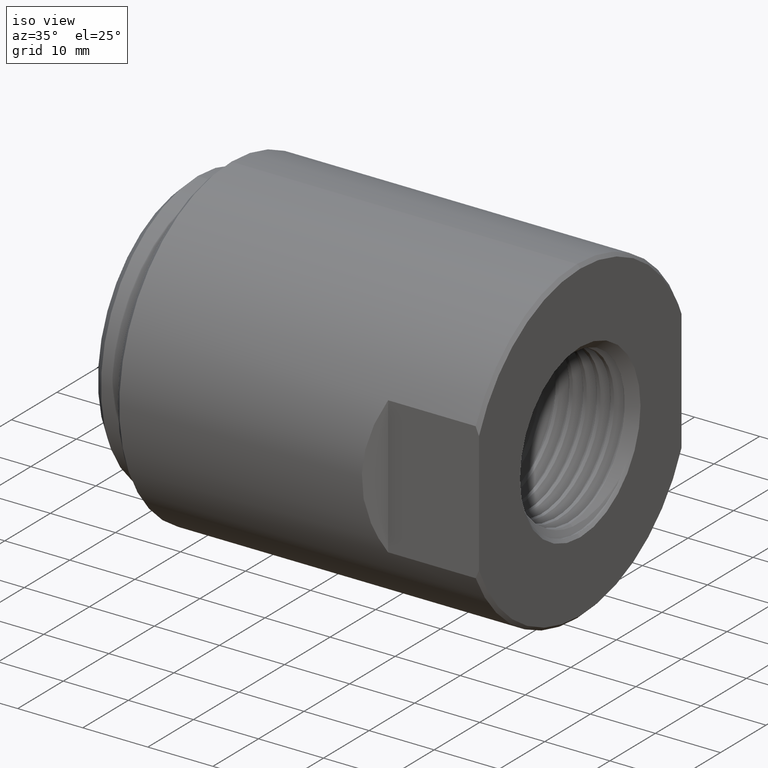
[diagram: clean part render]
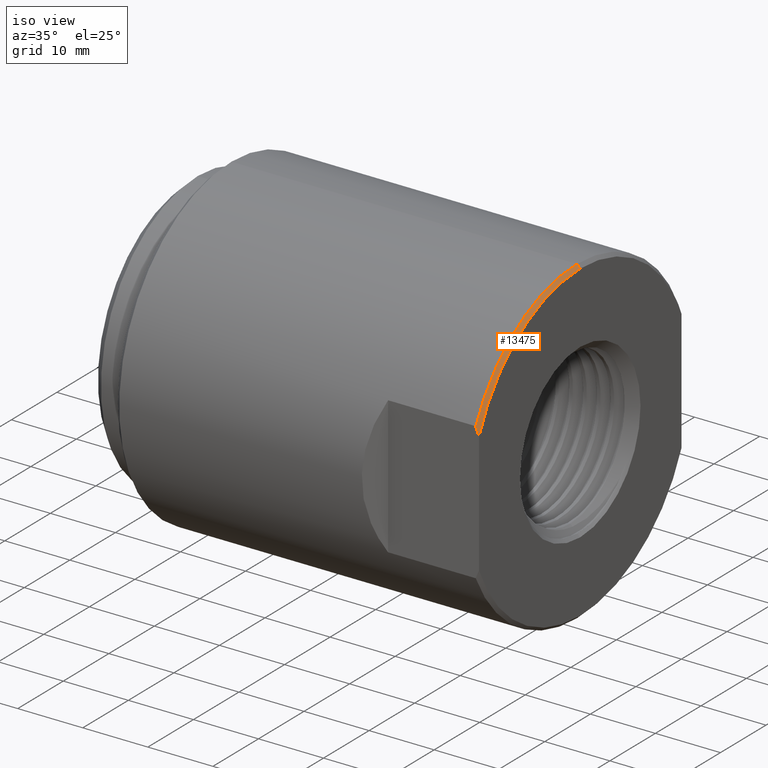
[diagram: same view with one face highlighted and labeled with its STEP entity id]
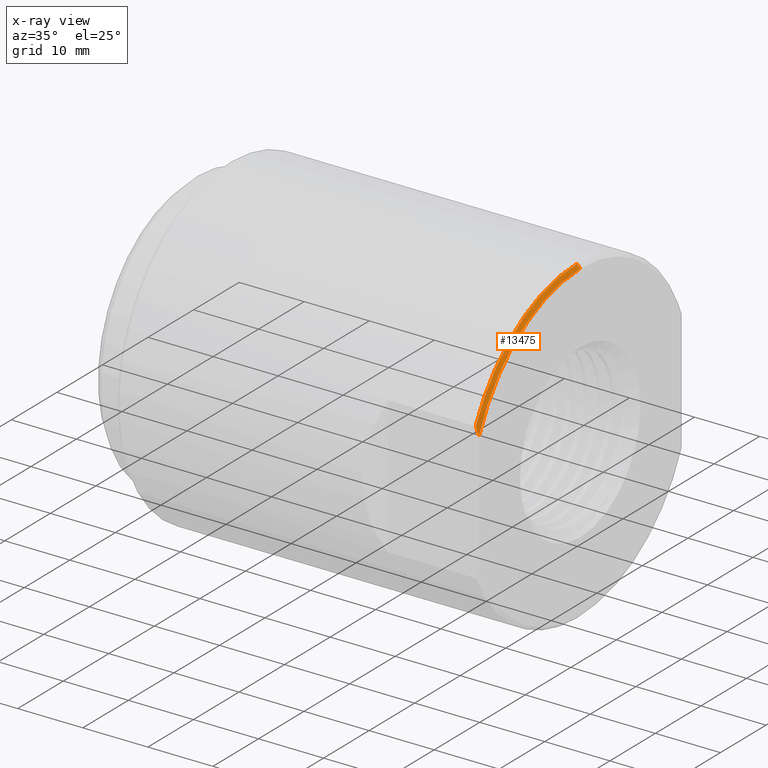
[diagram: x-ray of the same camera — body ghosted, the highlighted face saturated]
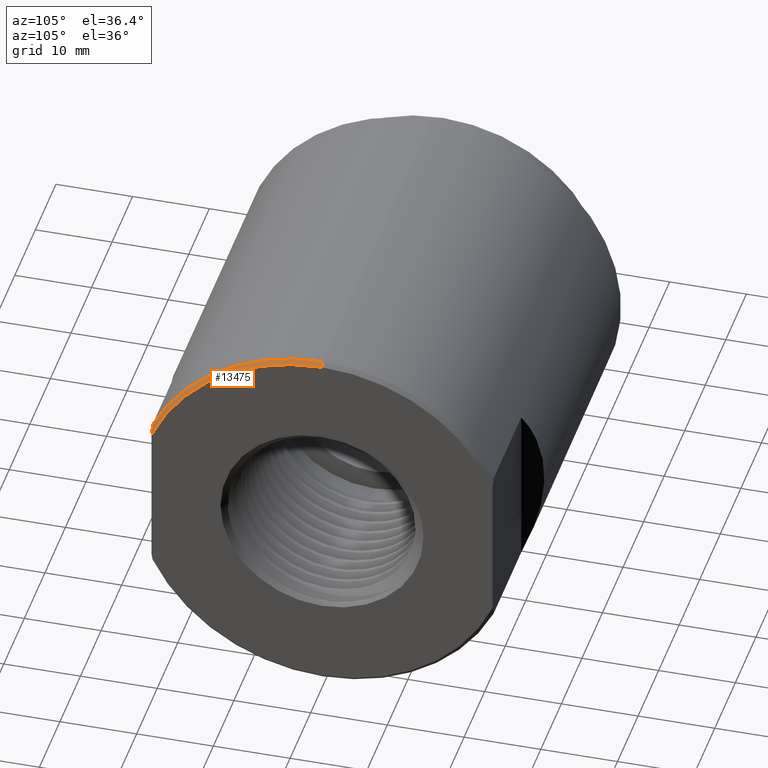
[diagram: same view with one face highlighted and labeled with its STEP entity id]
A machine part, iso view. The second image highlights one B-rep face of the part: STEP entity #13475.
The next image is the same camera in x-ray: the body ghosted, the highlighted face saturated — about 0% of this face is hidden behind the body in this view.
A second angle (auxiliary view) of the same face is appended — the face is thin or edge-on in the first view.
In plain terms, the highlighted conical surface has half-angle 45 deg.
Its self-contained STEP definition (entity closure, byte-faithful):
#207 = DIRECTION ( 'NONE',  ( -0.7071067811865523467, 0.0000000000000000000, 0.7071067811865426878 ) ) ;
#580 = CIRCLE ( 'NONE', #8318, 0.9487500000000000933 ) ;
#925 = VERTEX_POINT ( 'NONE', #7891 ) ;
#1382 = LINE ( 'NONE', #9700, #12094 ) ;
#1487 = VERTEX_POINT ( 'NONE', #6926 ) ;
#1783 = DIRECTION ( 'NONE',  ( 0.0000000000000000000, 0.0000000000000000000, 1.000000000000000000 ) ) ;
#1928 = CARTESIAN_POINT ( 'NONE',  ( 1.750000000000000222, -0.8750000000000003331, 0.3667445466533885701 ) ) ;
#1946 = CONICAL_SURFACE ( 'NONE', #12581, 0.9687499999999998890, 0.7853981633974415066 ) ;
#2597 = CARTESIAN_POINT ( 'NONE',  ( 1.750000000000000222, 0.0000000000000000000, 0.0000000000000000000 ) ) ;
#2605 = CARTESIAN_POINT ( 'NONE',  ( 1.736938786640938703, -0.8750000000000003331, 0.3995861238438196406 ) ) ;
#2698 = EDGE_CURVE ( 'NONE', #925, #13294, #12913, .T. ) ;
#2743 = CARTESIAN_POINT ( 'NONE',  ( 1.743617801218336982, -0.8750000000000003331, 0.3832549791856700860 ) ) ;
#3423 = ORIENTED_EDGE ( 'NONE', *, *, #7335, .T. ) ;
#3823 = FACE_OUTER_BOUND ( 'NONE', #6214, .T. ) ;
#4069 = ORIENTED_EDGE ( 'NONE', *, *, #6520, .T. ) ;
#4728 = DIRECTION ( 'NONE',  ( 0.0000000000000000000, 0.0000000000000000000, 1.000000000000000000 ) ) ;
#4816 = CARTESIAN_POINT ( 'NONE',  ( 1.730000000000000204, 0.0000000000000000000, 0.0000000000000000000 ) ) ;
#4859 = DIRECTION ( 'NONE',  ( -1.000000000000000000, -0.0000000000000000000, -0.0000000000000000000 ) ) ;
#5928 = DIRECTION ( 'NONE',  ( -1.000000000000000000, -0.0000000000000000000, -0.0000000000000000000 ) ) ;
#6214 = EDGE_LOOP ( 'NONE', ( #3423, #4069, #7302, #13019 ) ) ;
#6260 = AXIS2_PLACEMENT_3D ( 'NONE', #4816, #5928, #1783 ) ;
#6520 = EDGE_CURVE ( 'NONE', #1487, #13294, #1382, .T. ) ;
#6825 = DIRECTION ( 'NONE',  ( -1.000000000000000000, -0.0000000000000000000, -0.0000000000000000000 ) ) ;
#6833 = CARTESIAN_POINT ( 'NONE',  ( 1.730000000000000204, -0.8750000000000003331, 0.4157542092390635324 ) ) ;
#6926 = CARTESIAN_POINT ( 'NONE',  ( 1.750000000000000222, 0.0000000000000000000, 0.9487500000000000933 ) ) ;
#7302 = ORIENTED_EDGE ( 'NONE', *, *, #2698, .F. ) ;
#7335 = EDGE_CURVE ( 'NONE', #13174, #1487, #580, .T. ) ;
#7473 = B_SPLINE_CURVE_WITH_KNOTS ( 'NONE', 3,
 ( #8901, #2743, #2605, #6833 ),
 .UNSPECIFIED., .F., .F.,
 ( 4, 4 ),
 ( 0.06939612920926654938, 0.07073585939326498817 ),
 .UNSPECIFIED. ) ;
#7891 = CARTESIAN_POINT ( 'NONE',  ( 1.730000000000000204, -0.8750000000000003331, 0.4157542092390635324 ) ) ;
#8318 = AXIS2_PLACEMENT_3D ( 'NONE', #2597, #6825, #4728 ) ;
#8568 = CARTESIAN_POINT ( 'NONE',  ( 1.730000000000000204, 0.0000000000000000000, 0.9687499999999998890 ) ) ;
#8901 = CARTESIAN_POINT ( 'NONE',  ( 1.750000000000000222, -0.8750000000000003331, 0.3667445466533885701 ) ) ;
#9227 = DIRECTION ( 'NONE',  ( 0.0000000000000000000, 0.0000000000000000000, 1.000000000000000000 ) ) ;
#9700 = CARTESIAN_POINT ( 'NONE',  ( 1.730000000000000204, 0.0000000000000000000, 0.9687499999999998890 ) ) ;
#10211 = CARTESIAN_POINT ( 'NONE',  ( 1.730000000000000204, 0.0000000000000000000, 0.0000000000000000000 ) ) ;
#12094 = VECTOR ( 'NONE', #207, 39.37007874015748143 ) ;
#12530 = EDGE_CURVE ( 'NONE', #13174, #925, #7473, .T. ) ;
#12581 = AXIS2_PLACEMENT_3D ( 'NONE', #10211, #4859, #9227 ) ;
#12913 = CIRCLE ( 'NONE', #6260, 0.9687499999999998890 ) ;
#13019 = ORIENTED_EDGE ( 'NONE', *, *, #12530, .F. ) ;
#13174 = VERTEX_POINT ( 'NONE', #1928 ) ;
#13294 = VERTEX_POINT ( 'NONE', #8568 ) ;
#13475 = ADVANCED_FACE ( 'NONE', ( #3823 ), #1946, .T. ) ;